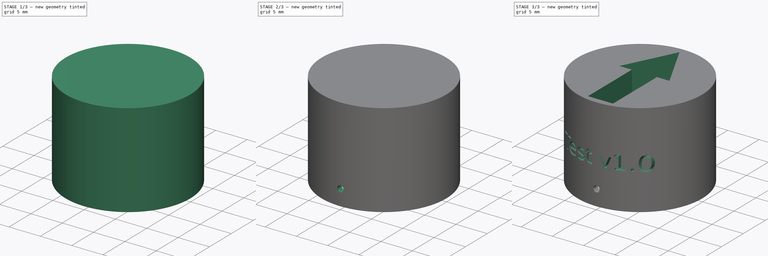
[diagram: build sequence overview — one tinted view per stage of 3, left to right]
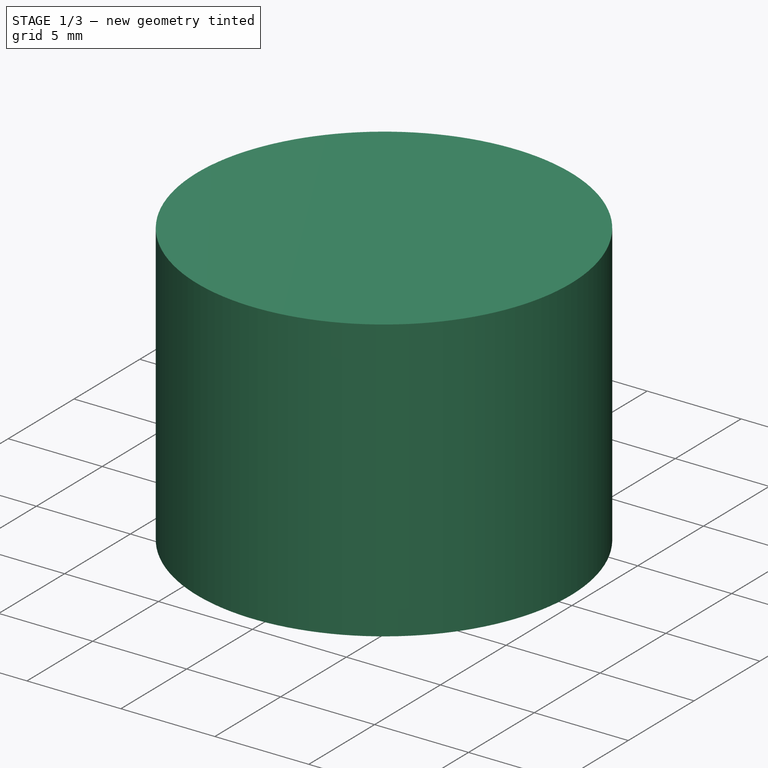
[diagram: stage 1 of 3 — iso view after this stage's code; geometry added in this stage tinted green]
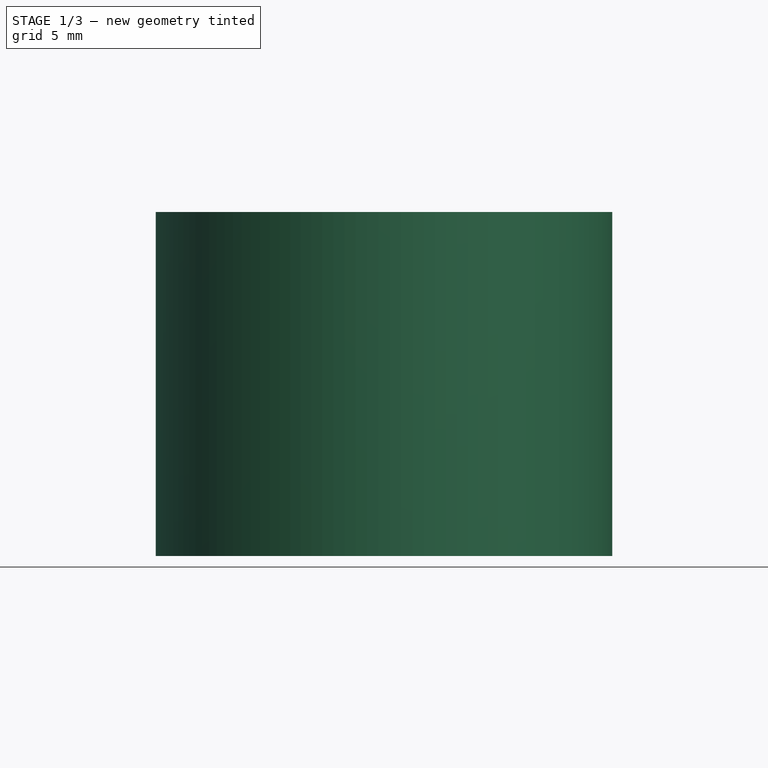
[diagram: stage 1 of 3 — front view after this stage's code; geometry added in this stage tinted green]
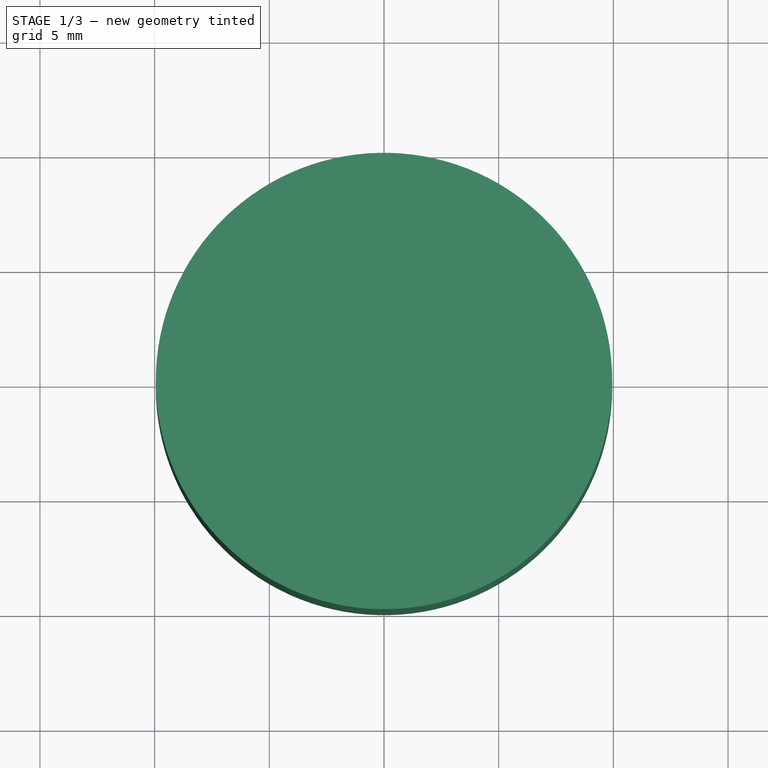
[diagram: stage 1 of 3 — top view after this stage's code; geometry added in this stage tinted green]
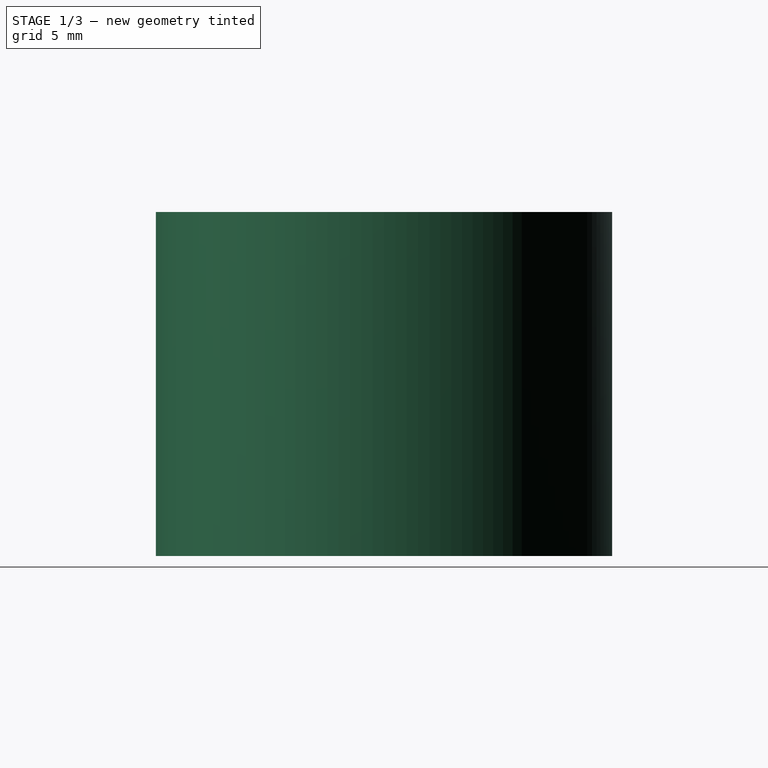
[diagram: stage 1 of 3 — right view after this stage's code; geometry added in this stage tinted green]
FCSTD DOCUMENT  (FreeCAD 0.19R24291 (Git))
Label: test_grid_template
License: All rights reserved
LicenseURL: http://en.wikipedia.org/wiki/All_rights_reserved
objects: Part::Feature×9, Sketcher::SketchObject×4, PartDesign::Pocket×3, Spreadsheet::Sheet×1, PartDesign::Pad×1, PartDesign::Body×1, Part::MultiFuse×1, Part::Cut×1
note: 24 computed .brp shape members not serialized (recipe doc carries the construction recipe); baked Part::Feature solids carry a one-line shape summary decoded from their .brp

FEATURE [Sketcher::SketchObject] Sketch
  FullyConstrained = true
  MapMode = 5
  Support = -> [XY_Plane]
  expr: Constraints[0] = <<grid_params>>.inner_width
  sketch-geometry (1):
    g0: Circle CenterX=0 CenterY=0 CenterZ=0 NormalX=0 NormalY=0 NormalZ=1 AngleXU=0 Radius=9.95
  constraints (2):
    c: Radius(g0) = 9.95
    c: Coincident(g-1,g0)
FEATURE [Spreadsheet::Sheet] Spreadsheet  label="grid_params"
  cells = A1=Inner radius; B1(inner_width)=9.949999999999999; A2=Hole diameter; B2(hole_size)=1; A3=Hole distance; B3(hole_distance)=1.5; A4=Grid length; B4(grid_length)=15; A5=Bottom pad; B5(bottom_pad)=5; A6=Screw holes; B6(screw_hole)=0.5
FEATURE [PartDesign::Pad] Pad
  Direction = (1,1,1)
  Length = 15
  Length2 = 100
  Profile = -> Sketch
  Type = 0
  expr: Length = <<grid_params>>.grid_length
FEATURE [Sketcher::SketchObject] Sketch001  label="bottompad"
  FullyConstrained = true
  MapMode = 5
  Placement = pos=(0,0,0) rot=(1,0,0;3.14159rad)
  Support = -> [Pad]
  expr: Constraints[1] = <<grid_params>>.inner_width - <<grid_params>>.hole_size
  sketch-geometry (1):
    g0: Circle CenterX=0 CenterY=0 CenterZ=0 NormalX=0 NormalY=0 NormalZ=1 AngleXU=0 Radius=8.95
  constraints (2):
    c: Coincident(g0,g-1)
    c: Radius(g0) = 8.95
FEATURE [PartDesign::Pocket] Pocket
  BaseFeature = -> Pad
  Length = 5
  Length2 = 100
  Profile = -> Sketch001
  Type = 0
  expr: Length = <<grid_params>>.bottom_pad
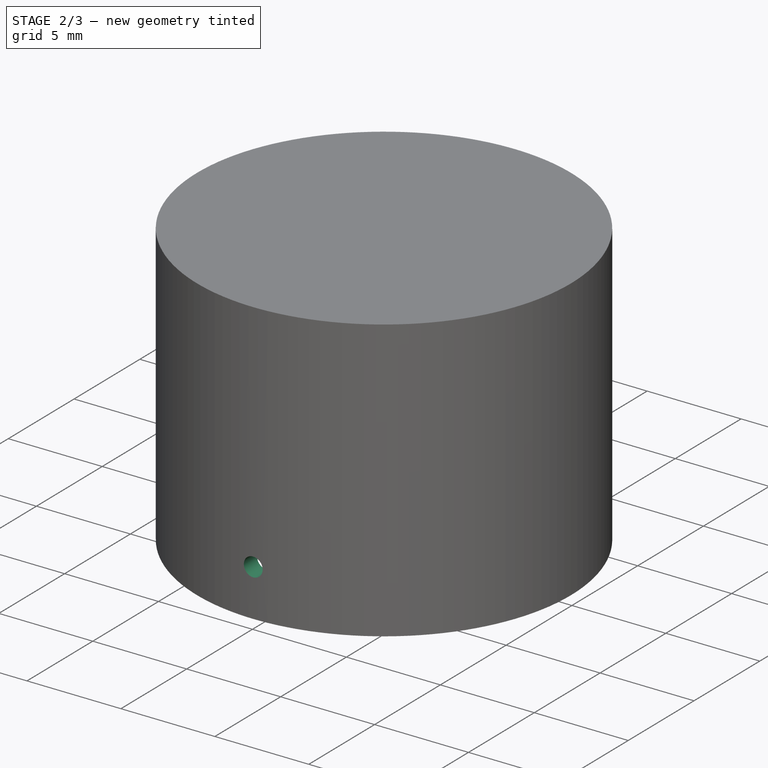
[diagram: stage 2 of 3 — iso view after this stage's code; geometry added in this stage tinted green]
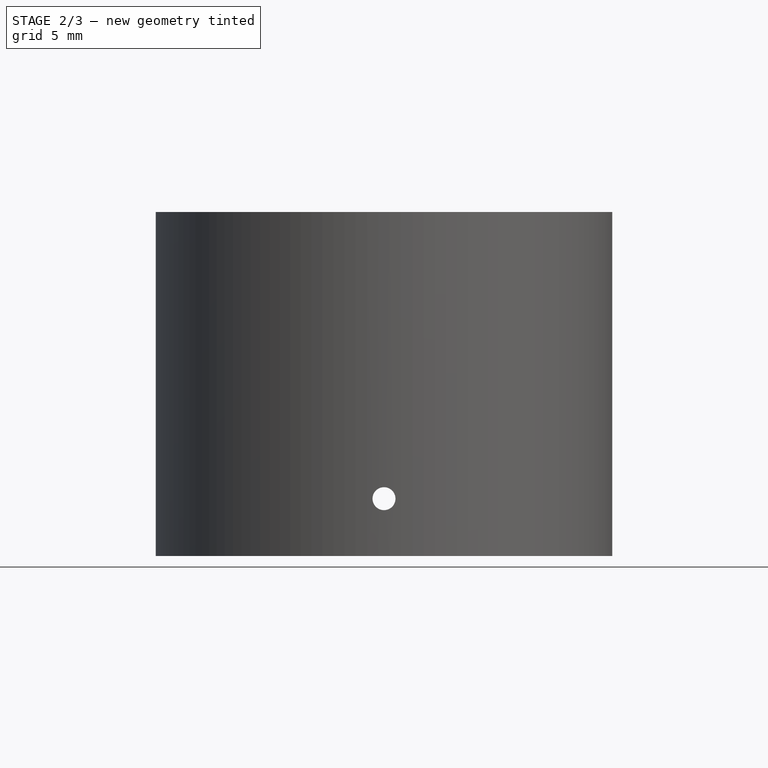
[diagram: stage 2 of 3 — front view after this stage's code; geometry added in this stage tinted green]
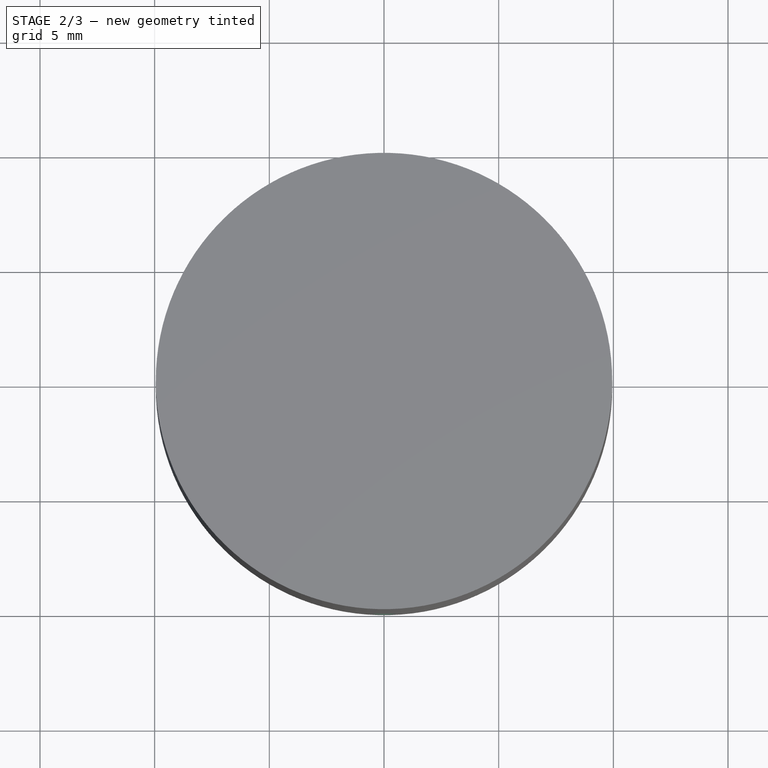
[diagram: stage 2 of 3 — top view after this stage's code; geometry added in this stage tinted green]
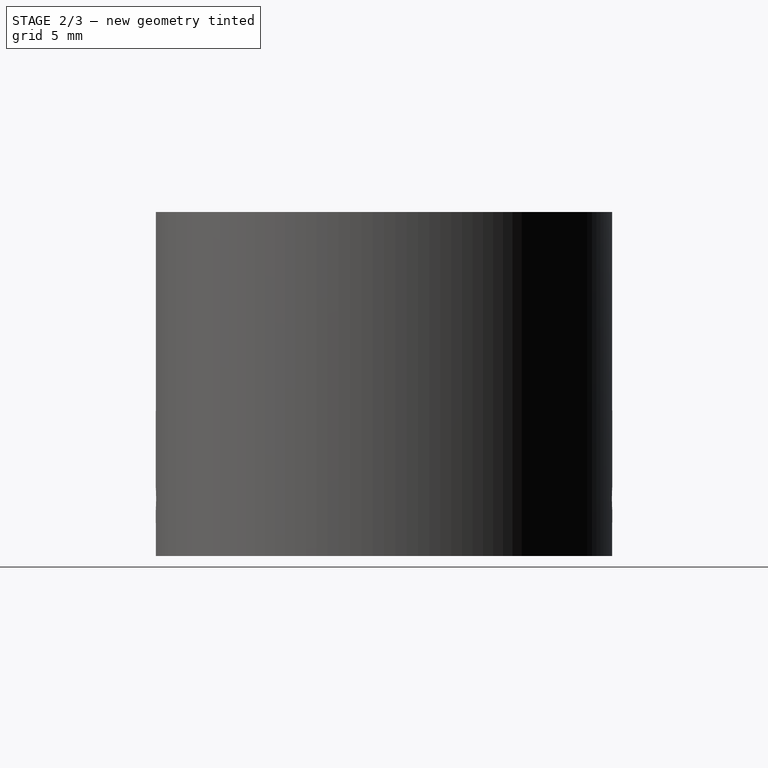
[diagram: stage 2 of 3 — right view after this stage's code; geometry added in this stage tinted green]
FEATURE [Sketcher::SketchObject] Sketch002
  FullyConstrained = true
  MapMode = 5
  Placement = pos=(0,0,0) rot=(1,0,0;1.5708rad)
  Support = -> [XZ_Plane]
  expr: Constraints[0] = <<grid_params>>.screw_hole
  expr: Constraints[2] = <<grid_params>>.bottom_pad / 2
  sketch-geometry (1):
    g0: Circle CenterX=0 CenterY=2.5 CenterZ=0 NormalX=0 NormalY=0 NormalZ=1 AngleXU=0 Radius=0.5
  constraints (3):
    c: Radius(g0) = 0.5
    c: PointOnObject(g0,g-2)
    c: DistanceY(g0) = 2.5
FEATURE [PartDesign::Pocket] Pocket001
  BaseFeature = -> Pocket
  Length = 5
  Length2 = 100
  Midplane = true
  Profile = -> Sketch002
  Type = 1
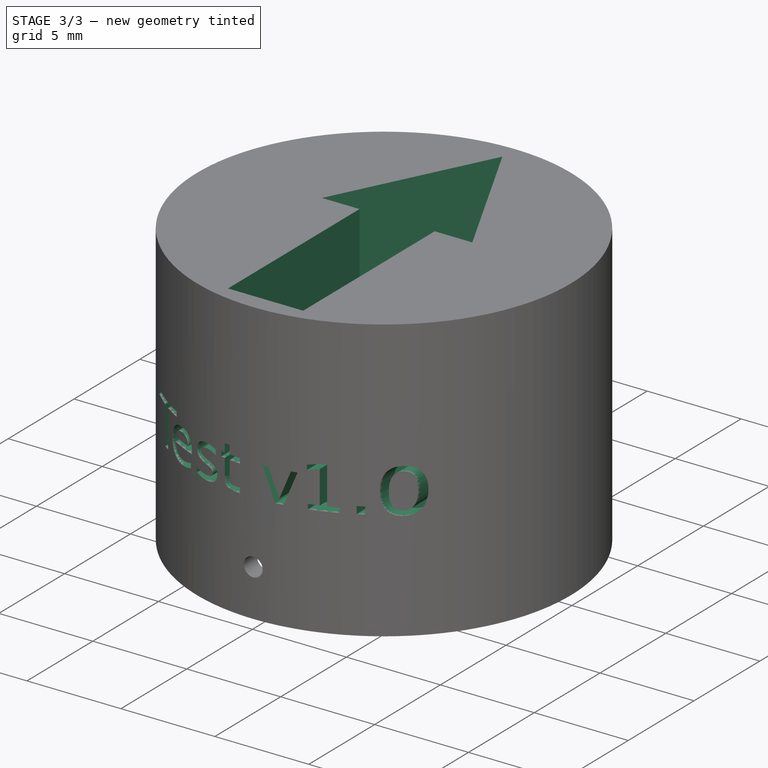
[diagram: stage 3 of 3 — iso view after this stage's code; geometry added in this stage tinted green]
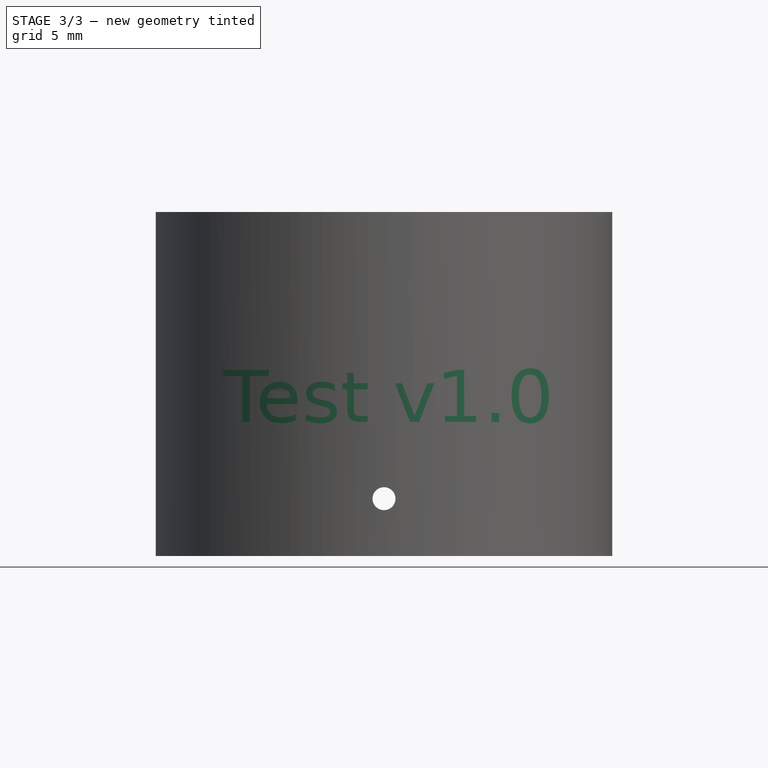
[diagram: stage 3 of 3 — front view after this stage's code; geometry added in this stage tinted green]
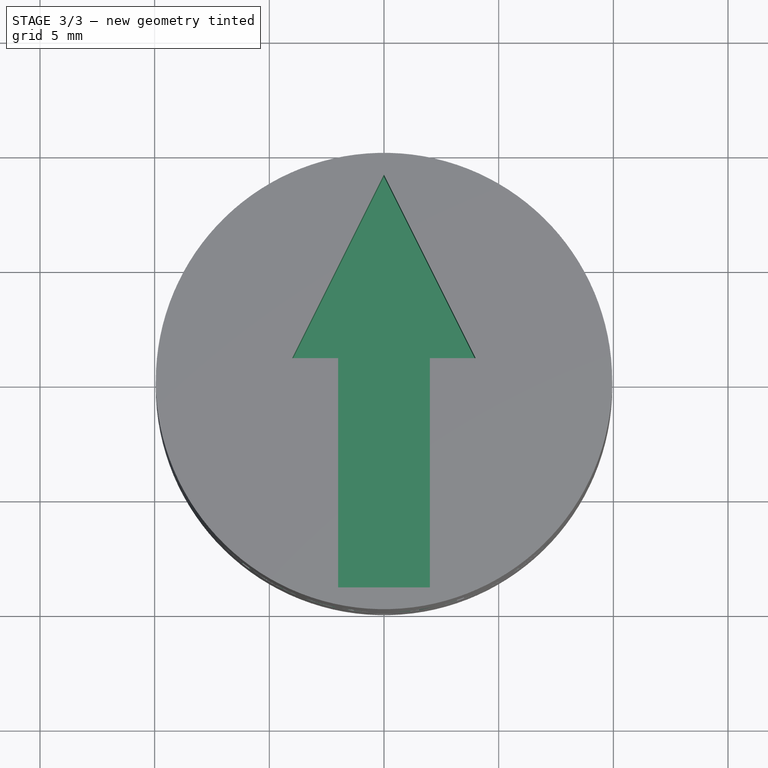
[diagram: stage 3 of 3 — top view after this stage's code; geometry added in this stage tinted green]
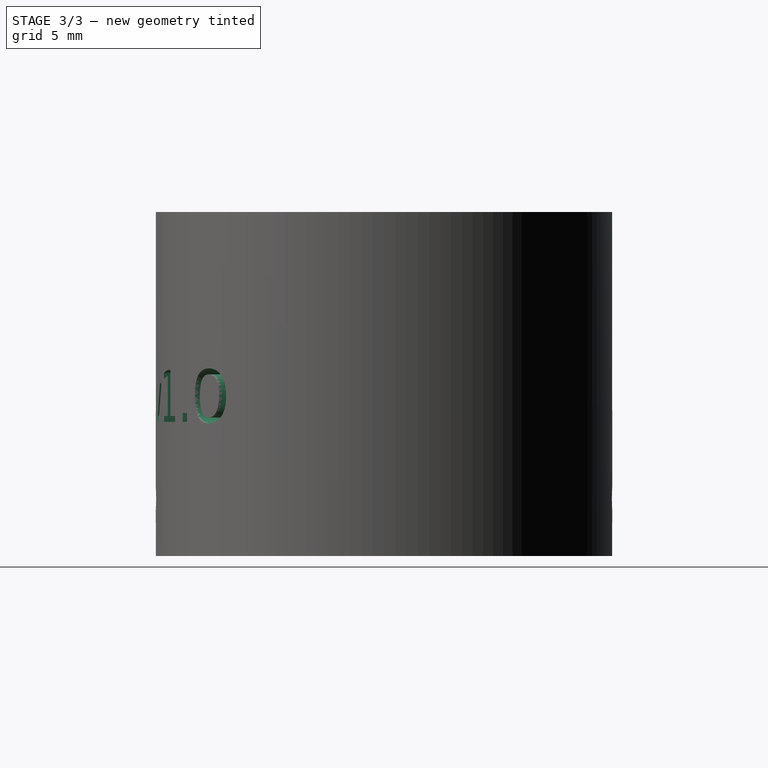
[diagram: stage 3 of 3 — right view after this stage's code; geometry added in this stage tinted green]
FEATURE [Sketcher::SketchObject] Sketch003
  FullyConstrained = true
  MapMode = 5
  Placement = pos=(0,0,15) rot=(0,0,1;0rad)
  Support = -> [Pocket001]
  sketch-geometry (7):
    g0: LineSegment StartX=0 StartY=9 StartZ=0 EndX=-4 EndY=1 EndZ=0
    g1: LineSegment StartX=-4 StartY=1 StartZ=0 EndX=-2 EndY=1 EndZ=0
    g2: LineSegment StartX=-2 StartY=1 StartZ=0 EndX=-2 EndY=-9 EndZ=0
    g3: LineSegment StartX=-2 StartY=-9 StartZ=0 EndX=2 EndY=-9 EndZ=0
    g4: LineSegment StartX=2 StartY=-9 StartZ=0 EndX=2 EndY=1 EndZ=0
    g5: LineSegment StartX=2 StartY=1 StartZ=0 EndX=4 EndY=1 EndZ=0
    g6: LineSegment StartX=4 StartY=1 StartZ=0 EndX=0 EndY=9 EndZ=0
  constraints (21):
    c: PointOnObject(g0,g-2)
    c: Coincident(g1,g0)
    c: Horizontal(g1)
    c: Coincident(g2,g1)
    c: Vertical(g2)
    c: Horizontal(g3)
    c: Coincident(g4,g3)
    c: Vertical(g4)
    c: Coincident(g5,g4)
    c: Horizontal(g5)
    c: Coincident(g6,g5)
    c: Coincident(g6,g0)
    c: Equal(g5,g1)
    c: Equal(g2,g4)
    c: Equal(g6,g0)
    c: Coincident(g3,g2)
    c: DistanceY(g4) = 1
    c: DistanceX(g-1,g4) = 2
    c: DistanceX(g5,g5) = 2
    c: DistanceY(g0) = 9
    c: DistanceY(g3) = -9
FEATURE [PartDesign::Pocket] Pocket002
  BaseFeature = -> Pocket001
  Length = 5
  Length2 = 100
  Profile = -> Sketch003
  Type = 0
FEATURE [PartDesign::Body] Body  label="Grid"
  Group = -> [Sketch,Pad,Sketch001,Pocket,Sketch002,Pocket001,Sketch003,Pocket002]
  Origin = -> Origin
  Tip = -> Pocket002
FEATURE [Part::Feature] Face
  shape: bbox 1.987 x 2.349 x 2e-07 mm, 1 faces, 0 solids (baked)
FEATURE [Part::Feature] Face001
  shape: bbox 1.633 x 1.879 x 2e-07 mm, 1 faces, 0 solids (baked)
FEATURE [Part::Feature] Face002
  shape: bbox 1.346 x 1.879 x 2e-07 mm, 1 faces, 0 solids (baked)
FEATURE [Part::Feature] Face003
  shape: bbox 1.099 x 2.215 x 2e-07 mm, 1 faces, 0 solids (baked)
FEATURE [Part::Feature] Face004
  shape: bbox 1.715 x 1.745 x 2e-07 mm, 1 faces, 0 solids (baked)
FEATURE [Part::Feature] Face005
  shape: bbox 1.398 x 2.349 x 2e-07 mm, 1 faces, 0 solids (baked)
FEATURE [Part::Feature] Face006
  shape: bbox 0.3314 x 0.4027 x 2e-07 mm, 1 faces, 0 solids (baked)
FEATURE [Part::Feature] Face007
  shape: bbox 1.623 x 2.483 x 2e-07 mm, 1 faces, 0 solids (baked)
FEATURE [Part::MultiFuse] Fusion
  Placement = pos=(-7,-12.9546,5.84632) rot=(1,0,0;1.8326rad)
  Shapes = -> [Face,Face001,Face002,Face003,Face004,Face005,Face006,Face007]
FEATURE [Part::Feature] Projection_Object  label="Projection Object"
  Placement = pos=(0,1,0) rot=(0,0,1;0rad)
  shape: bbox 14.19 x 4.055 x 2.399 mm, 128 faces, 8 solids (baked)
FEATURE [Part::Cut] Cut
  Base = -> Pocket002
  Tool = -> Projection_Object
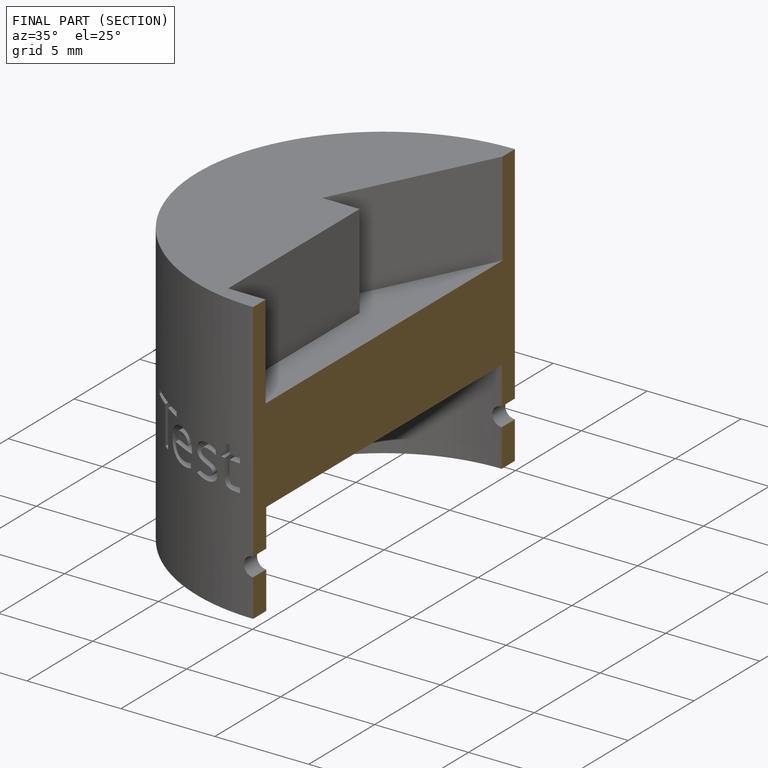
[diagram: finished part — half-section view (interior)]
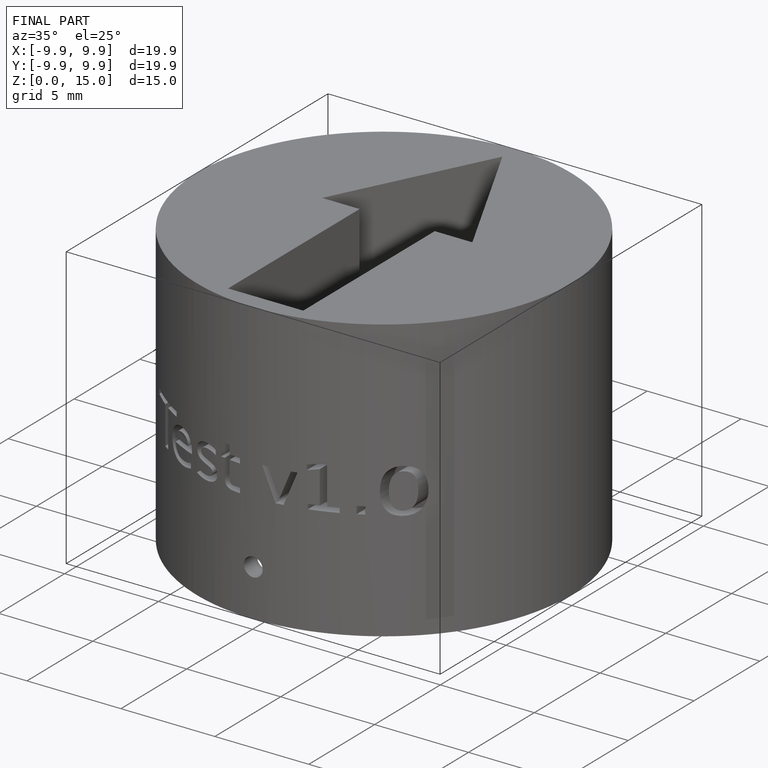
[diagram: finished part — iso view with bounding-box wireframe]
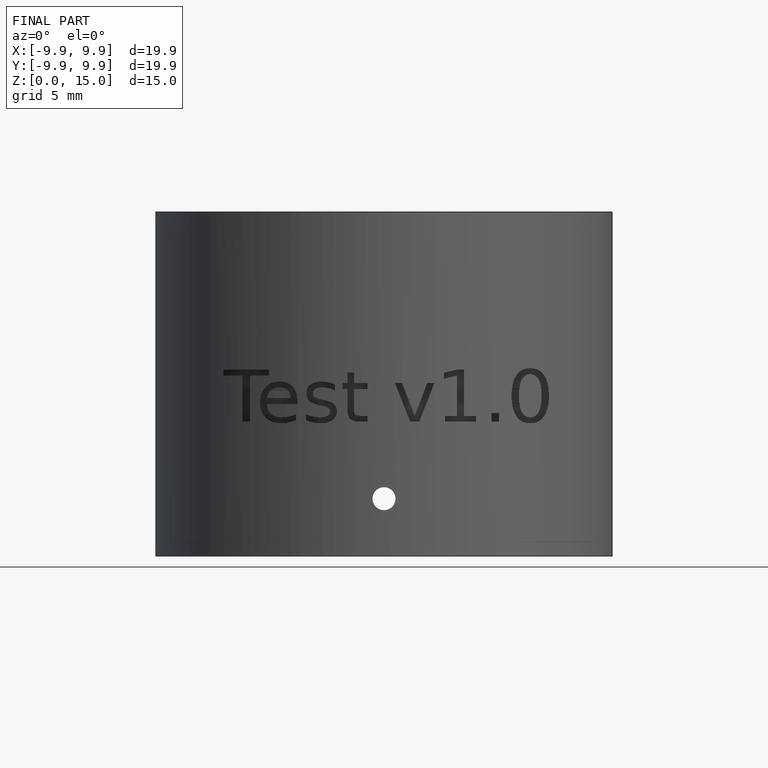
[diagram: finished part — front view with bounding-box wireframe]
